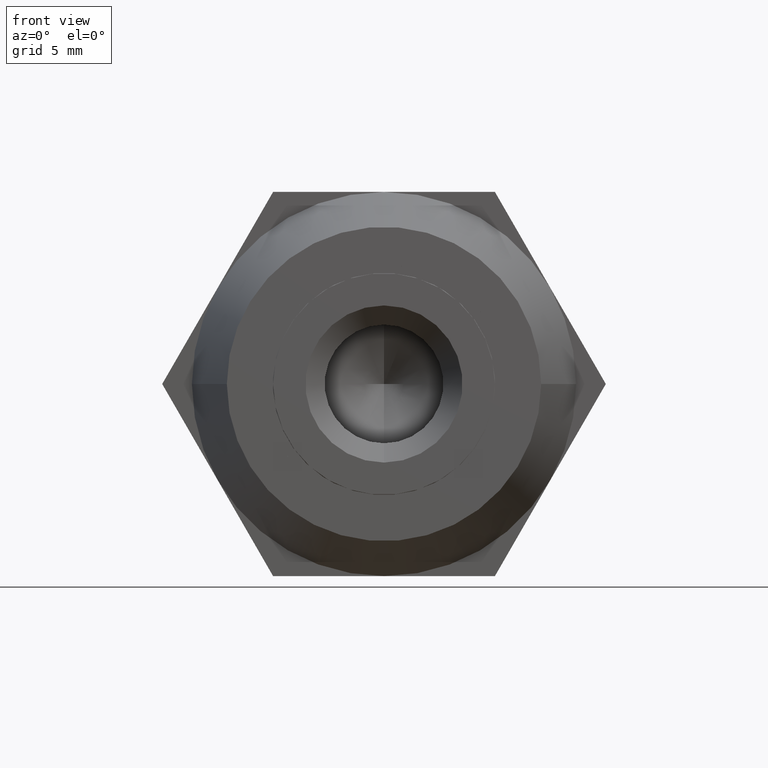
[diagram: clean part render]
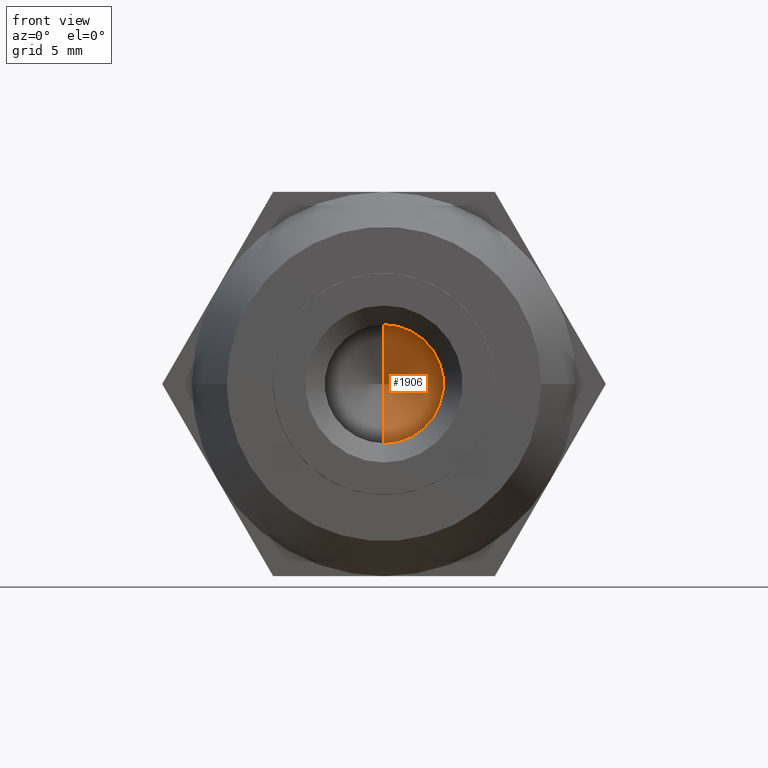
[diagram: same view with one face highlighted and labeled with its STEP entity id]
A machine part, front view. The second image highlights one B-rep face of the part: STEP entity #1906.
In plain terms, the highlighted conical surface has half-angle 59 deg.
Its self-contained STEP definition (entity closure, byte-faithful):
#2 = CARTESIAN_POINT ( 'NONE',  ( 4.163799117101000600E-016, 2.540000000000000000, -3.399999999999999900 ) ) ;
#139 = CARTESIAN_POINT ( 'NONE',  ( 0.0000000000000000000, 2.540000000000000000, 3.399999999999999900 ) ) ;
#471 = CARTESIAN_POINT ( 'NONE',  ( -2.327545607329394800E-015, 0.4970738953062950300, 0.0000000000000000000 ) ) ;
#546 = CONICAL_SURFACE ( 'NONE', #2618, 3.399999999999999900, 1.029744258676653600 ) ;
#753 = ORIENTED_EDGE ( 'NONE', *, *, #2513, .T. ) ;
#855 = DIRECTION ( 'NONE',  ( 1.049727191138618200E-016, 0.5150380749100549300, -0.8571673007021118900 ) ) ;
#949 = DIRECTION ( 'NONE',  ( 0.0000000000000000000, 1.000000000000000000, 0.0000000000000000000 ) ) ;
#978 = LINE ( 'NONE', #2608, #1388 ) ;
#1091 = CARTESIAN_POINT ( 'NONE',  ( 0.0000000000000000000, 2.540000000000000000, 0.0000000000000000000 ) ) ;
#1124 = VECTOR ( 'NONE', #1756, 999.9999999999998900 ) ;
#1388 = VECTOR ( 'NONE', #855, 999.9999999999998900 ) ;
#1647 = VERTEX_POINT ( 'NONE', #2 ) ;
#1691 = ORIENTED_EDGE ( 'NONE', *, *, #3587, .F. ) ;
#1706 = DIRECTION ( 'NONE',  ( 0.0000000000000000000, 1.000000000000000000, 0.0000000000000000000 ) ) ;
#1756 = DIRECTION ( 'NONE',  ( 0.0000000000000000000, 0.5150380749100549300, 0.8571673007021118900 ) ) ;
#1789 = DIRECTION ( 'NONE',  ( 0.0000000000000000000, 0.0000000000000000000, 1.000000000000000000 ) ) ;
#1906 = ADVANCED_FACE ( 'NONE', ( #2881 ), #546, .F. ) ;
#2038 = ORIENTED_EDGE ( 'NONE', *, *, #3642, .T. ) ;
#2111 = CARTESIAN_POINT ( 'NONE',  ( 0.0000000000000000000, 2.540000000000000000, 0.0000000000000000000 ) ) ;
#2294 = AXIS2_PLACEMENT_3D ( 'NONE', #1091, #1706, #3755 ) ;
#2301 = VERTEX_POINT ( 'NONE', #139 ) ;
#2331 = CIRCLE ( 'NONE', #2294, 3.399999999999999900 ) ;
#2513 = EDGE_CURVE ( 'NONE', #1647, #2301, #2331, .T. ) ;
#2536 = LINE ( 'NONE', #3802, #1124 ) ;
#2608 = CARTESIAN_POINT ( 'NONE',  ( 4.163799117101000600E-016, 2.540000000000000000, -3.399999999999999900 ) ) ;
#2618 = AXIS2_PLACEMENT_3D ( 'NONE', #2111, #949, #1789 ) ;
#2714 = VERTEX_POINT ( 'NONE', #471 ) ;
#2881 = FACE_OUTER_BOUND ( 'NONE', #3368, .T. ) ;
#3368 = EDGE_LOOP ( 'NONE', ( #1691, #2038, #753 ) ) ;
#3587 = EDGE_CURVE ( 'NONE', #2714, #2301, #2536, .T. ) ;
#3642 = EDGE_CURVE ( 'NONE', #2714, #1647, #978, .T. ) ;
#3755 = DIRECTION ( 'NONE',  ( 0.0000000000000000000, 0.0000000000000000000, 1.000000000000000000 ) ) ;
#3802 = CARTESIAN_POINT ( 'NONE',  ( 0.0000000000000000000, 2.540000000000000000, 3.399999999999999900 ) ) ;